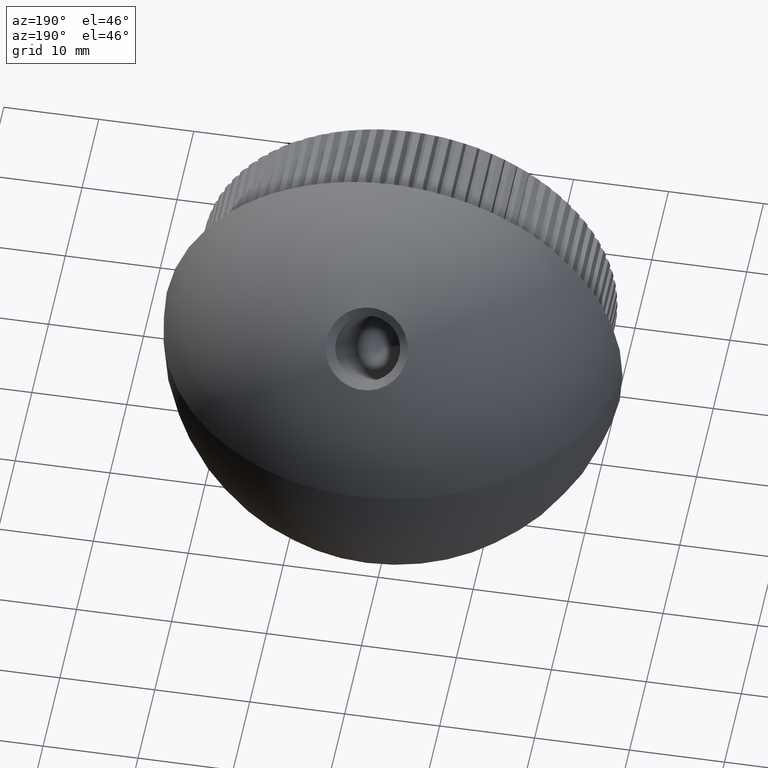
[diagram: clean part render]
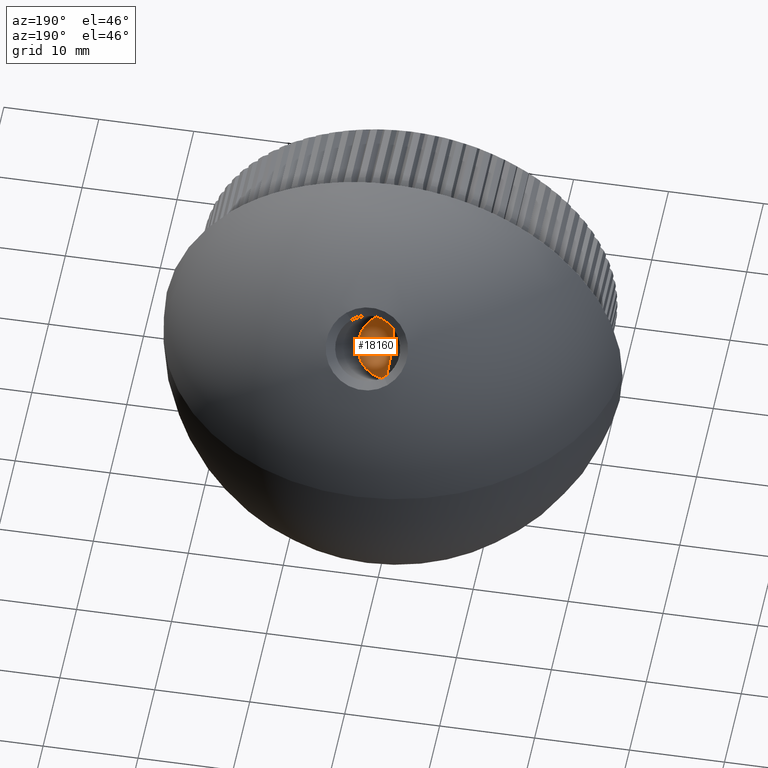
[diagram: same view with one face highlighted and labeled with its STEP entity id]
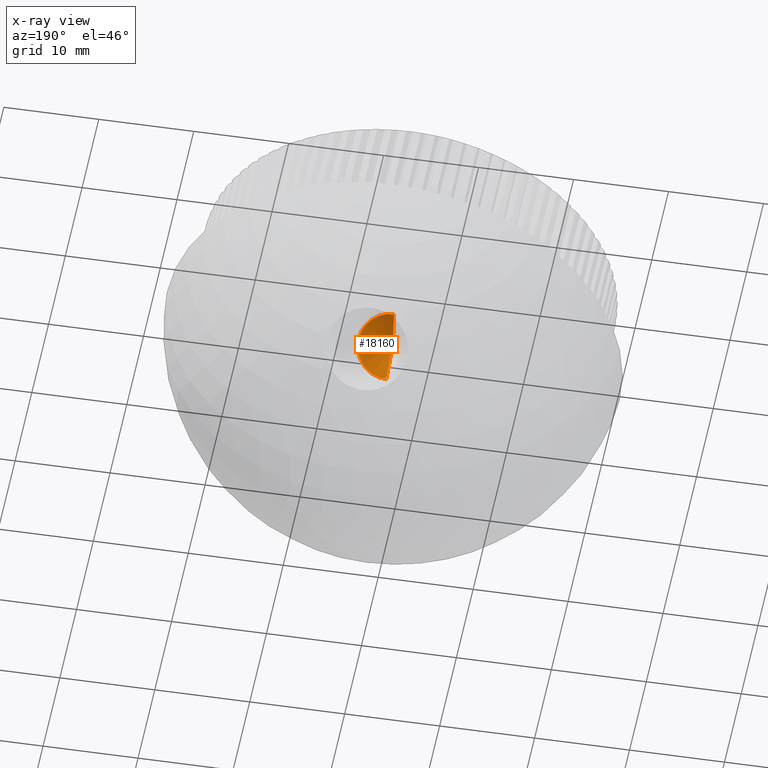
[diagram: x-ray of the same camera — body ghosted, the highlighted face saturated]
A machine part, auxiliary view. The second image highlights one B-rep face of the part: STEP entity #18160.
The next image is the same camera in x-ray: the body ghosted, the highlighted face saturated — about 7% of this face is hidden behind the body in this view.
In plain terms, the highlighted conical surface has half-angle 59 deg.
Its self-contained STEP definition (entity closure, byte-faithful):
#59 = EDGE_LOOP ( 'NONE', ( #15548, #6760, #17693 ) ) ;
#494 = DIRECTION ( 'NONE',  ( 0.0000000000000000000, -0.2419218955996638400, 0.9702957262759973600 ) ) ;
#2539 = CARTESIAN_POINT ( 'NONE',  ( 3.064990616329362400E-017, 15.24831129030553400, -0.5600148217630042100 ) ) ;
#4349 = VECTOR ( 'NONE', #494, 1000.000000000000100 ) ;
#6760 = ORIENTED_EDGE ( 'NONE', *, *, #11947, .T. ) ;
#7176 = DIRECTION ( 'NONE',  ( 1.049727191138617300E-016, 0.9702957262759965800, -0.2419218955996674200 ) ) ;
#7432 = DIRECTION ( 'NONE',  ( -0.0000000000000000000, 0.7071067811865487900, 0.7071067811865462400 ) ) ;
#7888 = VERTEX_POINT ( 'NONE', #7928 ) ;
#7928 = CARTESIAN_POINT ( 'NONE',  ( -3.857300055468055500E-016, 10.43998517823702700, 4.248311290305513100 ) ) ;
#8697 = FACE_OUTER_BOUND ( 'NONE', #59, .T. ) ;
#8759 = VERTEX_POINT ( 'NONE', #14573 ) ;
#9341 = CARTESIAN_POINT ( 'NONE',  ( -3.857300055468055500E-016, 12.84414823427127800, 1.844148234271255400 ) ) ;
#9997 = AXIS2_PLACEMENT_3D ( 'NONE', #15484, #21335, #21264 ) ;
#10054 = VECTOR ( 'NONE', #7176, 1000.000000000000000 ) ;
#10153 = CIRCLE ( 'NONE', #9997, 3.399999999999995500 ) ;
#11947 = EDGE_CURVE ( 'NONE', #8759, #7888, #21521, .T. ) ;
#14573 = CARTESIAN_POINT ( 'NONE',  ( -5.784689785137760100E-015, 11.39958133217933600, 0.3995813321793165700 ) ) ;
#15484 = CARTESIAN_POINT ( 'NONE',  ( -3.857300055468055500E-016, 12.84414823427127800, 1.844148234271255400 ) ) ;
#15548 = ORIENTED_EDGE ( 'NONE', *, *, #23761, .F. ) ;
#16714 = DIRECTION ( 'NONE',  ( 0.0000000000000000000, -0.7071067811865464600, 0.7071067811865486800 ) ) ;
#17332 = CONICAL_SURFACE ( 'NONE', #17487, 3.399999999999995500, 1.029744258676652300 ) ;
#17487 = AXIS2_PLACEMENT_3D ( 'NONE', #9341, #7432, #16714 ) ;
#17693 = ORIENTED_EDGE ( 'NONE', *, *, #20619, .T. ) ;
#18160 = ADVANCED_FACE ( 'NONE', ( #8697 ), #17332, .F. ) ;
#19120 = VERTEX_POINT ( 'NONE', #2539 ) ;
#19547 = LINE ( 'NONE', #24309, #10054 ) ;
#20619 = EDGE_CURVE ( 'NONE', #7888, #19120, #10153, .T. ) ;
#21264 = DIRECTION ( 'NONE',  ( 0.0000000000000000000, -0.7071067811865464600, 0.7071067811865486800 ) ) ;
#21335 = DIRECTION ( 'NONE',  ( -0.0000000000000000000, 0.7071067811865487900, 0.7071067811865462400 ) ) ;
#21521 = LINE ( 'NONE', #22482, #4349 ) ;
#22482 = CARTESIAN_POINT ( 'NONE',  ( -3.857300055468055500E-016, 10.43998517823702500, 4.248311290305517600 ) ) ;
#23761 = EDGE_CURVE ( 'NONE', #8759, #19120, #19547, .T. ) ;
#24309 = CARTESIAN_POINT ( 'NONE',  ( 3.064990616329396300E-017, 15.24831129030553400, -0.5600148217630067600 ) ) ;